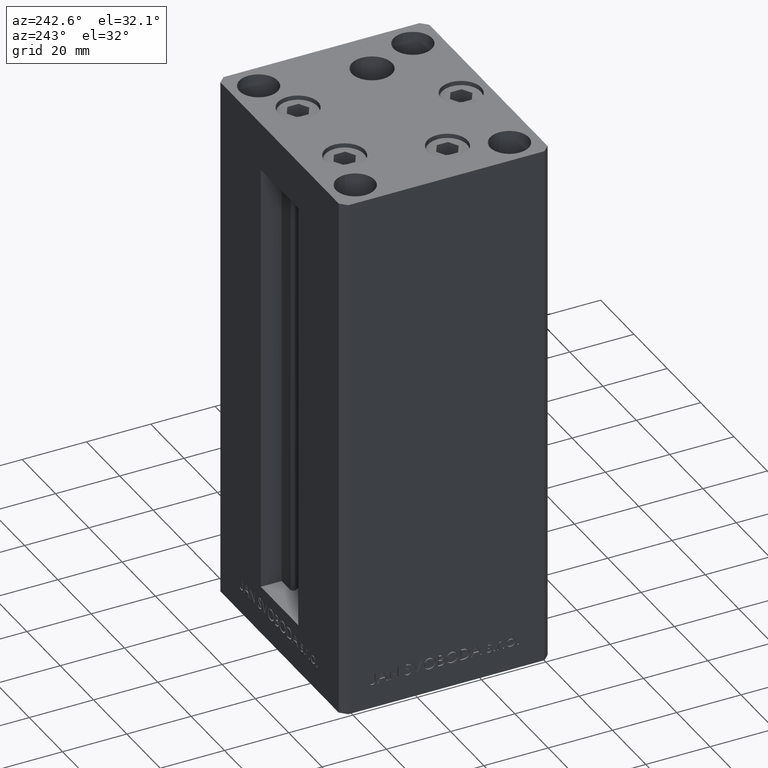
[diagram: clean part render]
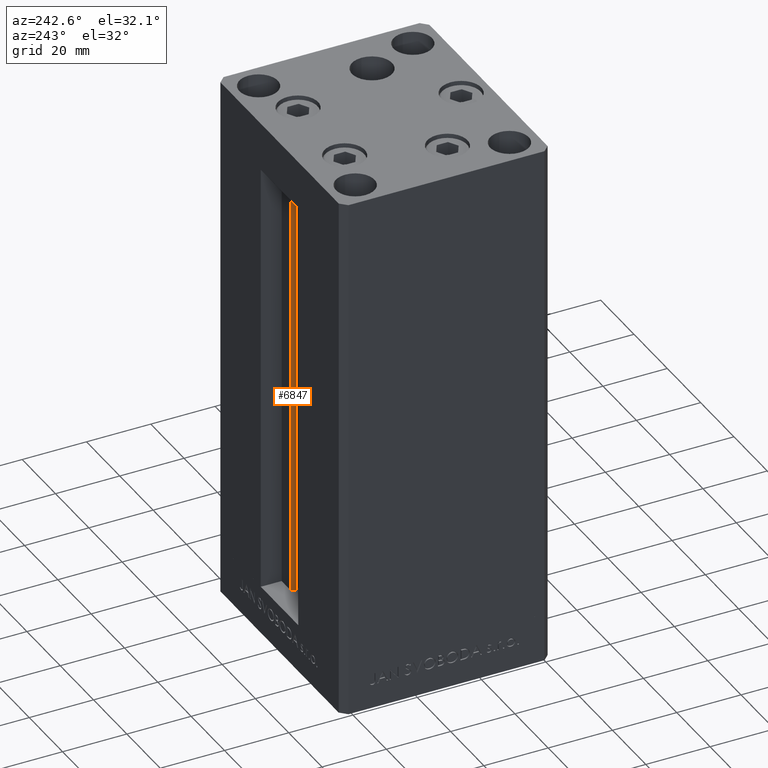
[diagram: same view with one face highlighted and labeled with its STEP entity id]
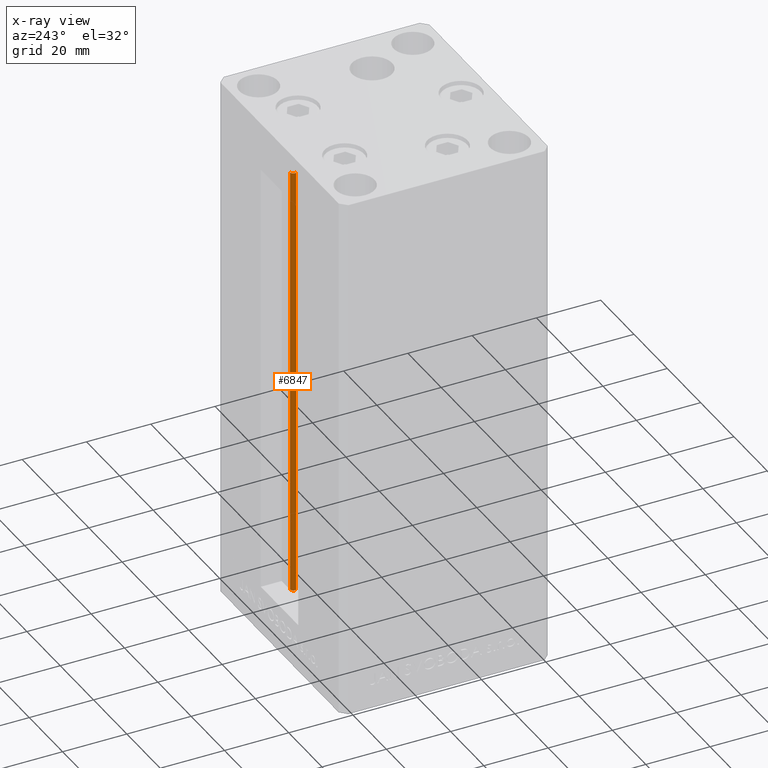
[diagram: x-ray of the same camera — body ghosted, the highlighted face saturated]
A machine part, auxiliary view. The second image highlights one B-rep face of the part: STEP entity #6847.
The next image is the same camera in x-ray: the body ghosted, the highlighted face saturated — about 0% of this face is hidden behind the body in this view.
In plain terms, the highlighted cylindrical surface (edge-blend (fillet) strip) has radius 0.9333 mm, axis along (0, 0, 1).
Its self-contained STEP definition (entity closure, byte-faithful):
#2554 = CARTESIAN_POINT ( 'NONE',  ( 5.375042956467947164, 24.59999999999899245, 0.000000000000000000 ) ) ;
#4043 = FACE_OUTER_BOUND ( 'NONE', #8828, .T. ) ;
#4538 = CYLINDRICAL_SURFACE ( 'NONE', #48884, 0.9333333333340008142 ) ;
#4869 = CARTESIAN_POINT ( 'NONE',  ( 6.183333333334001480, 25.99999999999999289, 0.000000000000000000 ) ) ;
#6847 = ADVANCED_FACE ( 'NONE', ( #4043 ), #4538, .T. ) ;
#8828 = EDGE_LOOP ( 'NONE', ( #29523, #48143, #40546, #39808 ) ) ;
#9033 = DIRECTION ( 'NONE',  ( 1.000000000000000000, 0.000000000000000000, 0.000000000000000000 ) ) ;
#9276 = DIRECTION ( 'NONE',  ( -0.000000000000000000, -0.000000000000000000, 1.000000000000000000 ) ) ;
#10694 = CIRCLE ( 'NONE', #44934, 0.9333333333340008142 ) ;
#12029 = EDGE_CURVE ( 'NONE', #29443, #30286, #20417, .T. ) ;
#13480 = VECTOR ( 'NONE', #9276, 1000.000000000000000 ) ;
#14050 = CARTESIAN_POINT ( 'NONE',  ( 5.375042956467947164, 24.59999999999899245, 0.000000000000000000 ) ) ;
#15643 = VERTEX_POINT ( 'NONE', #43198 ) ;
#17502 = LINE ( 'NONE', #2554, #13480 ) ;
#18020 = AXIS2_PLACEMENT_3D ( 'NONE', #42957, #42446, #9033 ) ;
#19739 = CARTESIAN_POINT ( 'NONE',  ( 6.183333333334001480, 25.06666666666599141, 0.000000000000000000 ) ) ;
#20417 = CIRCLE ( 'NONE', #18020, 0.9333333333340008142 ) ;
#21652 = DIRECTION ( 'NONE',  ( 1.000000000000000000, 0.000000000000000000, 0.000000000000000000 ) ) ;
#24061 = VERTEX_POINT ( 'NONE', #14050 ) ;
#25937 = EDGE_CURVE ( 'NONE', #15643, #30286, #47254, .T. ) ;
#29443 = VERTEX_POINT ( 'NONE', #43114 ) ;
#29523 = ORIENTED_EDGE ( 'NONE', *, *, #25937, .F. ) ;
#30286 = VERTEX_POINT ( 'NONE', #35993 ) ;
#31382 = EDGE_CURVE ( 'NONE', #24061, #29443, #17502, .T. ) ;
#33109 = DIRECTION ( 'NONE',  ( -0.000000000000000000, -0.000000000000000000, -1.000000000000000000 ) ) ;
#35283 = DIRECTION ( 'NONE',  ( -0.000000000000000000, -0.000000000000000000, 1.000000000000000000 ) ) ;
#35993 = CARTESIAN_POINT ( 'NONE',  ( 6.183333333334001480, 25.99999999999999289, 136.0000000000000000 ) ) ;
#39192 = DIRECTION ( 'NONE',  ( 1.000000000000000000, 0.000000000000000000, 0.000000000000000000 ) ) ;
#39808 = ORIENTED_EDGE ( 'NONE', *, *, #12029, .T. ) ;
#40546 = ORIENTED_EDGE ( 'NONE', *, *, #31382, .T. ) ;
#42446 = DIRECTION ( 'NONE',  ( 0.000000000000000000, 0.000000000000000000, -1.000000000000000000 ) ) ;
#42957 = CARTESIAN_POINT ( 'NONE',  ( 6.183333333334001480, 25.06666666666599141, 136.0000000000000000 ) ) ;
#43114 = CARTESIAN_POINT ( 'NONE',  ( 5.375042956467948052, 24.59999999999899245, 136.0000000000000000 ) ) ;
#43198 = CARTESIAN_POINT ( 'NONE',  ( 6.183333333334001480, 25.99999999999999289, 0.000000000000000000 ) ) ;
#43422 = CARTESIAN_POINT ( 'NONE',  ( 6.183333333334001480, 25.06666666666599141, 0.000000000000000000 ) ) ;
#44934 = AXIS2_PLACEMENT_3D ( 'NONE', #43422, #33109, #21652 ) ;
#45178 = EDGE_CURVE ( 'NONE', #24061, #15643, #10694, .T. ) ;
#46170 = DIRECTION ( 'NONE',  ( -0.000000000000000000, -0.000000000000000000, 1.000000000000000000 ) ) ;
#47254 = LINE ( 'NONE', #4869, #48355 ) ;
#48143 = ORIENTED_EDGE ( 'NONE', *, *, #45178, .F. ) ;
#48355 = VECTOR ( 'NONE', #35283, 1000.000000000000000 ) ;
#48884 = AXIS2_PLACEMENT_3D ( 'NONE', #19739, #46170, #39192 ) ;